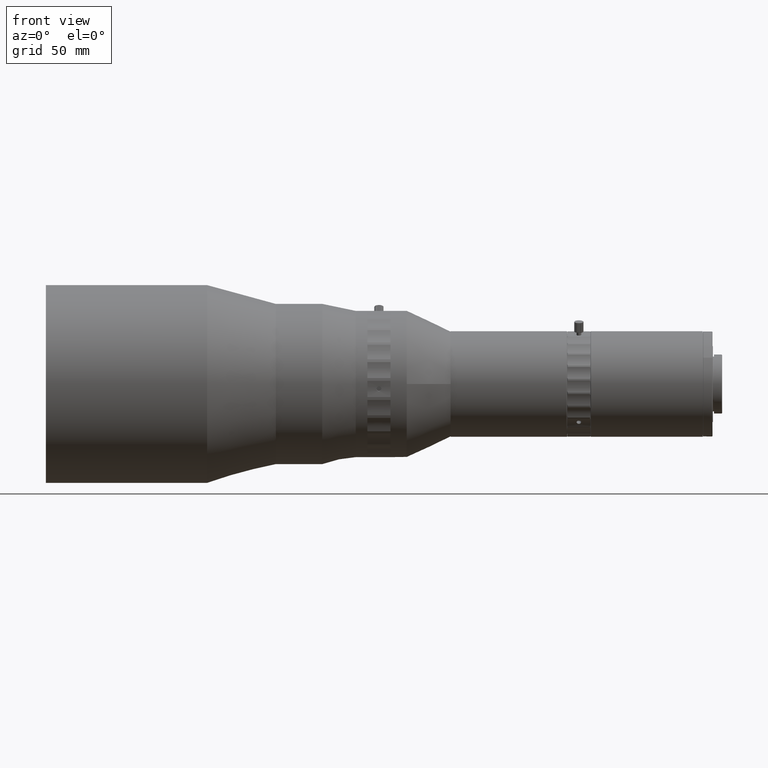
[diagram: clean part render]
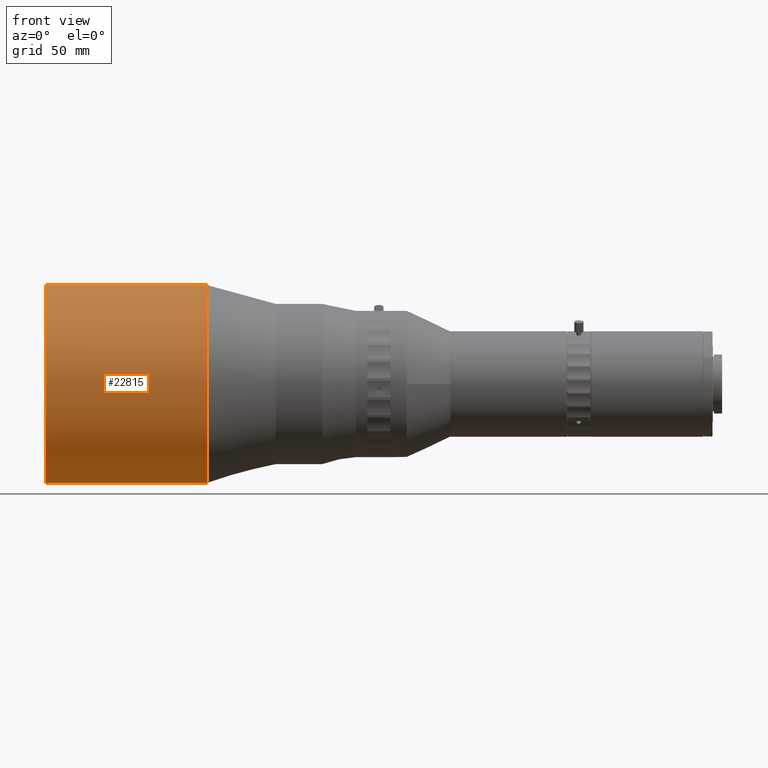
[diagram: same view with one face highlighted and labeled with its STEP entity id]
A machine part, front view. The second image highlights one B-rep face of the part: STEP entity #22815.
In plain terms, the highlighted cylindrical surface (bore or boss wall) has radius 42.6 mm, axis along (-1, -0, -0).
Its self-contained STEP definition (entity closure, byte-faithful):
#532 = EDGE_LOOP ( 'NONE', ( #63640 ) ) ;
#3212 = CARTESIAN_POINT ( 'NONE',  ( -83.58732065252303300, 10.19269740323191975, 154.4499999608852647 ) ) ;
#13428 = VERTEX_POINT ( 'NONE', #47568 ) ;
#14321 = DIRECTION ( 'NONE',  ( -1.000000000000000000, -0.000000000000000000, -0.000000000000000000 ) ) ;
#14666 = DIRECTION ( 'NONE',  ( 0.000000000000000000, 0.000000000000000000, 1.000000000000000000 ) ) ;
#15368 = DIRECTION ( 'NONE',  ( 0.000000000000000000, 0.000000000000000000, 1.000000000000000000 ) ) ;
#17464 = CIRCLE ( 'NONE', #40844, 42.59999999999975273 ) ;
#19220 = CARTESIAN_POINT ( 'NONE',  ( -88.16526710570180114, 10.19269740323191975, 154.4499999608852647 ) ) ;
#19913 = FACE_OUTER_BOUND ( 'NONE', #52523, .T. ) ;
#22815 = ADVANCED_FACE ( 'NONE', ( #57167, #19913 ), #66915, .T. ) ;
#27157 = CIRCLE ( 'NONE', #66091, 42.59999999999975273 ) ;
#35867 = AXIS2_PLACEMENT_3D ( 'NONE', #19220, #14321, #14666 ) ;
#38411 = CARTESIAN_POINT ( 'NONE',  ( -14.15760549751940367, 10.19269740323191975, 197.0499999608850032 ) ) ;
#40844 = AXIS2_PLACEMENT_3D ( 'NONE', #3212, #50363, #61110 ) ;
#45159 = EDGE_CURVE ( 'NONE', #13428, #13428, #17464, .T. ) ;
#45359 = ORIENTED_EDGE ( 'NONE', *, *, #54866, .T. ) ;
#47568 = CARTESIAN_POINT ( 'NONE',  ( -83.58732065252303300, 10.19269740323191975, 197.0499999608850032 ) ) ;
#48846 = CARTESIAN_POINT ( 'NONE',  ( -14.15760549751940367, 10.19269740323191975, 154.4499999608852647 ) ) ;
#50363 = DIRECTION ( 'NONE',  ( 1.000000000000000000, 0.000000000000000000, 0.000000000000000000 ) ) ;
#52523 = EDGE_LOOP ( 'NONE', ( #45359 ) ) ;
#52785 = VERTEX_POINT ( 'NONE', #38411 ) ;
#54866 = EDGE_CURVE ( 'NONE', #52785, #52785, #27157, .T. ) ;
#57167 = FACE_OUTER_BOUND ( 'NONE', #532, .T. ) ;
#61110 = DIRECTION ( 'NONE',  ( 0.000000000000000000, 0.000000000000000000, 1.000000000000000000 ) ) ;
#63044 = DIRECTION ( 'NONE',  ( -1.000000000000000000, -0.000000000000000000, -0.000000000000000000 ) ) ;
#63640 = ORIENTED_EDGE ( 'NONE', *, *, #45159, .T. ) ;
#66091 = AXIS2_PLACEMENT_3D ( 'NONE', #48846, #63044, #15368 ) ;
#66915 = CYLINDRICAL_SURFACE ( 'NONE', #35867, 42.59999999999975273 ) ;